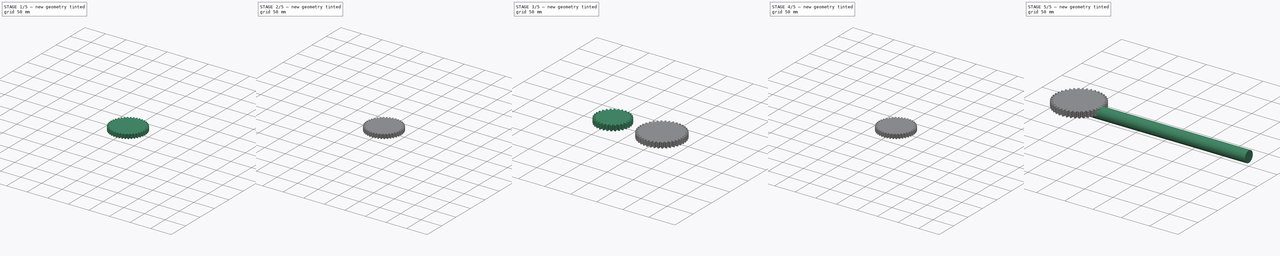
[diagram: build sequence overview — one tinted view per stage of 5, left to right]
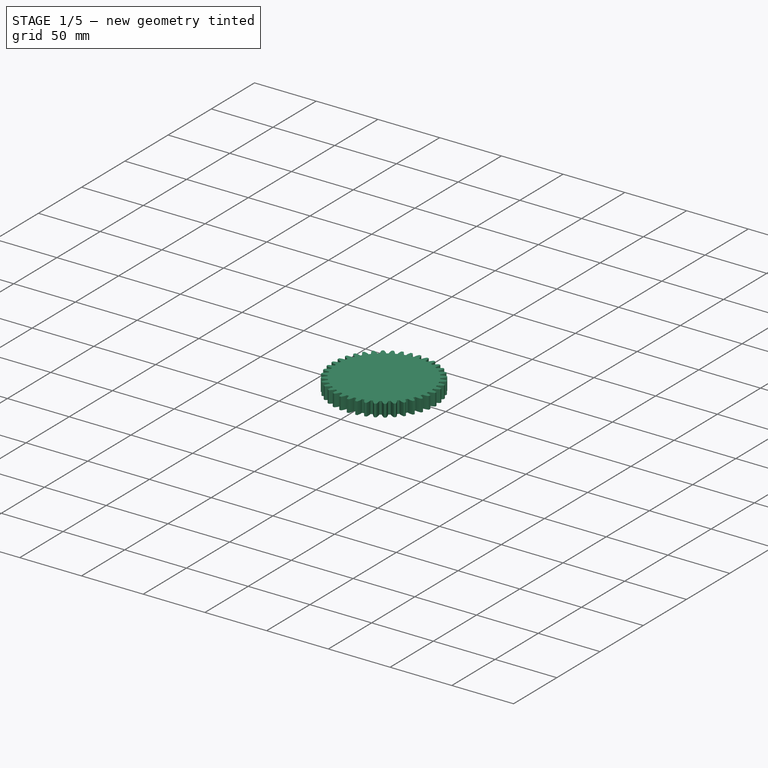
[diagram: stage 1 of 5 — iso view after this stage's code; geometry added in this stage tinted green]
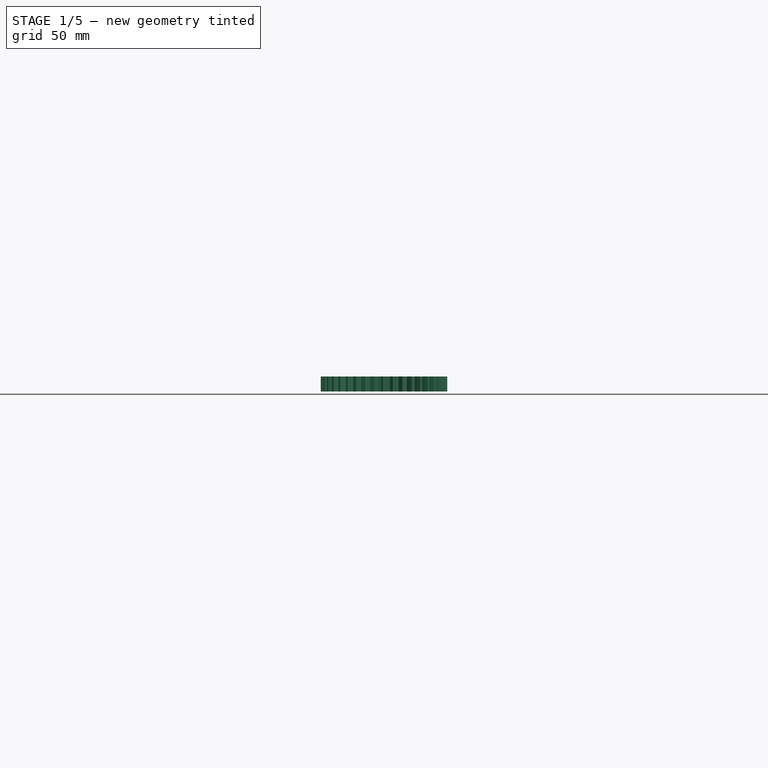
[diagram: stage 1 of 5 — front view after this stage's code; geometry added in this stage tinted green]
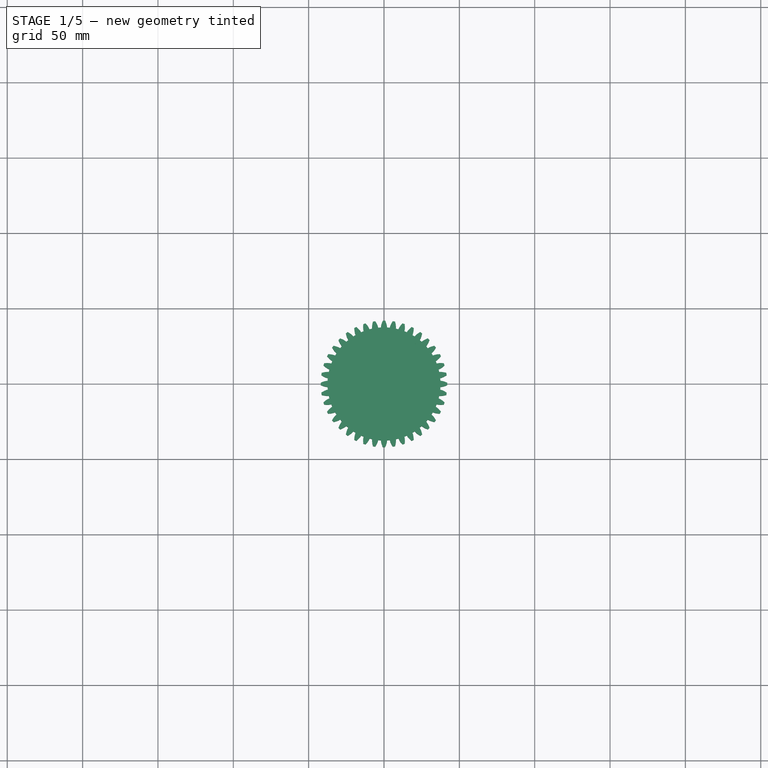
[diagram: stage 1 of 5 — top view after this stage's code; geometry added in this stage tinted green]
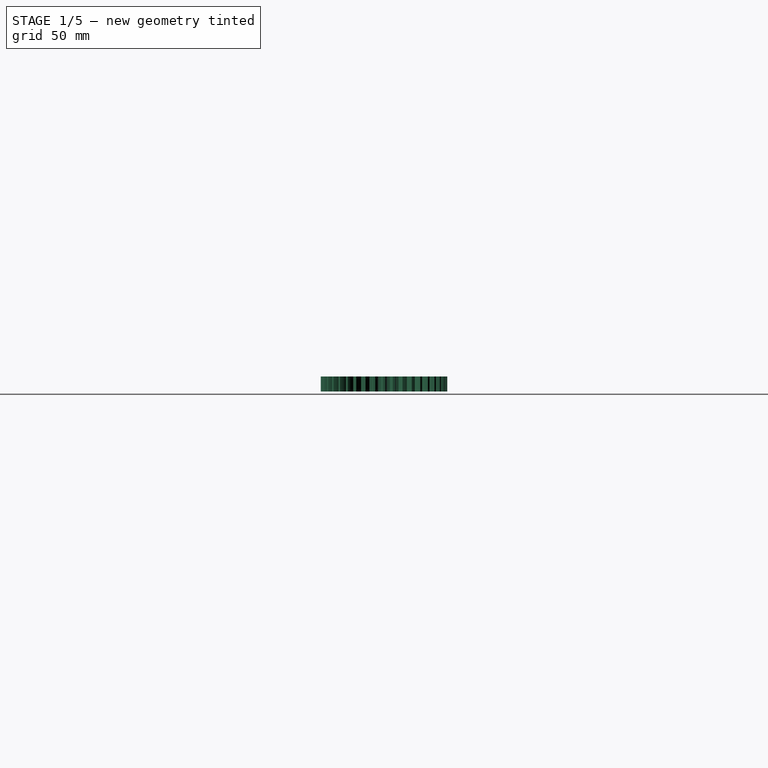
[diagram: stage 1 of 5 — right view after this stage's code; geometry added in this stage tinted green]
FCSTD DOCUMENT  (FreeCAD 0.21R33668 +26 (Git))
Label: Feed Gear Design
License: All rights reserved
LicenseURL: https://en.wikipedia.org/wiki/All_rights_reserved
objects: Sketcher::SketchObject×15, PartDesign::Body×15, PartDesign::Pocket×13, Part::FeaturePython×12, PartDesign::FeatureBase×12, PartDesign::FeaturePython×3, PartDesign::Pad×2, App::DocumentObjectGroup×2
note: 87 computed .brp shape members not serialized (recipe doc carries the construction recipe); baked Part::Feature solids carry a one-line shape summary decoded from their .brp

FEATURE [PartDesign::Body] Body013
  BaseFeature = -> InvoluteGear013
  Group = -> [BaseFeature009,Sketch013,Pocket011]
  Origin = -> Origin013
  Placement = pos=(118,92,2.01e-14) rot=(0,1,0;1.5708rad)
  Tip = -> Pocket011
FEATURE [Part::FeaturePython] InvoluteGear014  # WARN: FeaturePython — macro-defined, semantics opaque (R4)
  AttacherType = Attacher::AttachEngine3D
  angular_backlash = 0
  backlash = 0
  beta = 0
  clearance = 0.25
  da = 70
  df = 61
  double_helix = false
  dw = 66
  head = 0
  head_fillet = 0
  height = 10
  module = 2
  numpoints = 20
  pressure_angle = 20
  properties_from_tool = false
  reversed_backlash = false
  root_fillet = 0
  shift = 0
  simple = false
  teeth = 33
  transverse_pitch = 6.28319
  traverse_module = 2
  undercut = false
  version = 1.2.0
  expr: angular_backlash = backlash / dw * 360 ° / pi
FEATURE [PartDesign::FeatureBase] BaseFeature010
  BaseFeature = -> InvoluteGear014
FEATURE [Sketcher::SketchObject] Sketch014
  FullyConstrained = true
  MapMode = 5
  sketch-geometry (1):
    g0: Circle CenterX=0 CenterY=0 CenterZ=0 NormalX=0 NormalY=0 NormalZ=1 AngleXU=0 Radius=10
  constraints (2):
    c: Coincident(g0,g-1)
    c: Radius(g0) = 10
FEATURE [PartDesign::Pocket] Pocket012
  BaseFeature = -> BaseFeature010
  Direction = (0,0,-1)
  Length = 10
  Length2 = 5
  Profile = -> Sketch014
  ReferenceAxis = -> Sketch014 [N_Axis]
  Type = 0
FEATURE [PartDesign::Body] Body014
  BaseFeature = -> InvoluteGear014
  Group = -> [BaseFeature010,Sketch014,Pocket012]
  Origin = -> Origin014
  Placement = pos=(98,22,1.6e-14) rot=(0,1,0;1.5708rad)
  Tip = -> Pocket012
FEATURE [Part::FeaturePython] InvoluteGear015  # WARN: FeaturePython — macro-defined, semantics opaque (R4)
  AttacherType = Attacher::AttachEngine3D
  angular_backlash = 0
  backlash = 0
  beta = 0
  clearance = 0.25
  da = 70
  df = 61
  double_helix = false
  dw = 66
  head = 0
  head_fillet = 0
  height = 10
  module = 2
  numpoints = 20
  pressure_angle = 20
  properties_from_tool = false
  reversed_backlash = false
  root_fillet = 0
  shift = 0
  simple = false
  teeth = 33
  transverse_pitch = 6.28319
  traverse_module = 2
  undercut = false
  version = 1.2.0
  expr: angular_backlash = backlash / dw * 360 ° / pi
FEATURE [PartDesign::FeatureBase] BaseFeature011
  BaseFeature = -> InvoluteGear015
FEATURE [Sketcher::SketchObject] Sketch015
  FullyConstrained = true
  MapMode = 5
  sketch-geometry (1):
    g0: Circle CenterX=0 CenterY=0 CenterZ=0 NormalX=0 NormalY=0 NormalZ=1 AngleXU=0 Radius=10
  constraints (2):
    c: Coincident(g0,g-1)
    c: Radius(g0) = 10
FEATURE [PartDesign::Pocket] Pocket013
  BaseFeature = -> BaseFeature011
  Direction = (0,0,-1)
  Length = 10
  Length2 = 5
  Profile = -> Sketch015
  ReferenceAxis = -> Sketch015 [N_Axis]
  Type = 0
FEATURE [PartDesign::Body] Body015
  BaseFeature = -> InvoluteGear015
  Group = -> [BaseFeature011,Sketch015,Pocket013]
  Origin = -> Origin015
  Placement = pos=(271,22,5.44e-14) rot=(0,1,0;1.5708rad)
  Tip = -> Pocket013
FEATURE [Part::FeaturePython] InvoluteGear016  # WARN: FeaturePython — macro-defined, semantics opaque (R4)
  AttacherType = Attacher::AttachEngine3D
  angular_backlash = 0
  backlash = 0
  beta = 0
  clearance = 0.25
  da = 84
  df = 75
  double_helix = false
  dw = 80
  head = 0
  head_fillet = 0
  height = 10
  module = 2
  numpoints = 20
  pressure_angle = 20
  properties_from_tool = false
  reversed_backlash = false
  root_fillet = 0
  shift = 0
  simple = false
  teeth = 40
  transverse_pitch = 6.28319
  traverse_module = 2
  undercut = false
  version = 1.2.0
  expr: angular_backlash = backlash / dw * 360 ° / pi
FEATURE [PartDesign::FeatureBase] BaseFeature012
  BaseFeature = -> InvoluteGear016
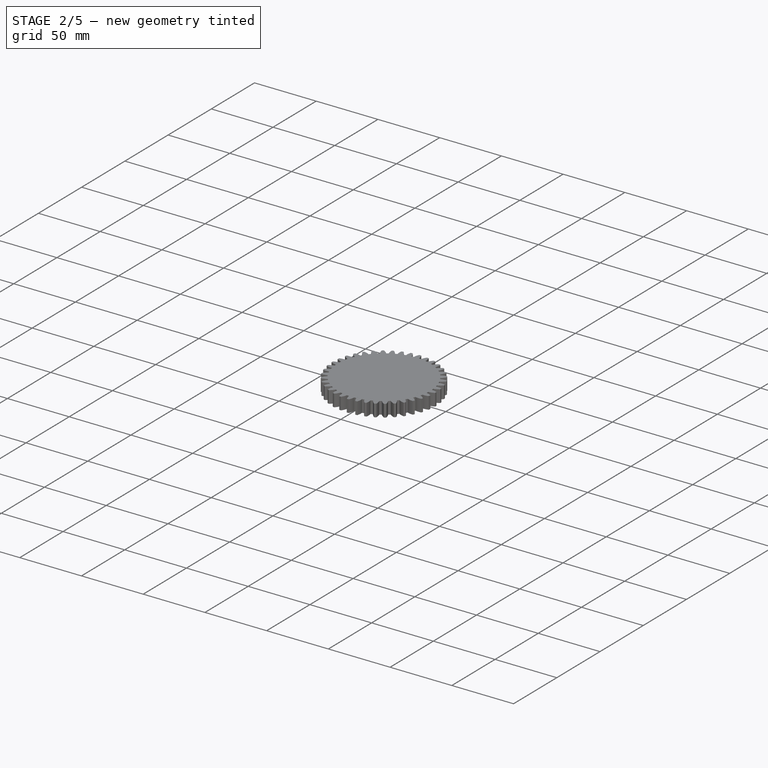
[diagram: stage 2 of 5 — iso view after this stage's code; geometry added in this stage tinted green]
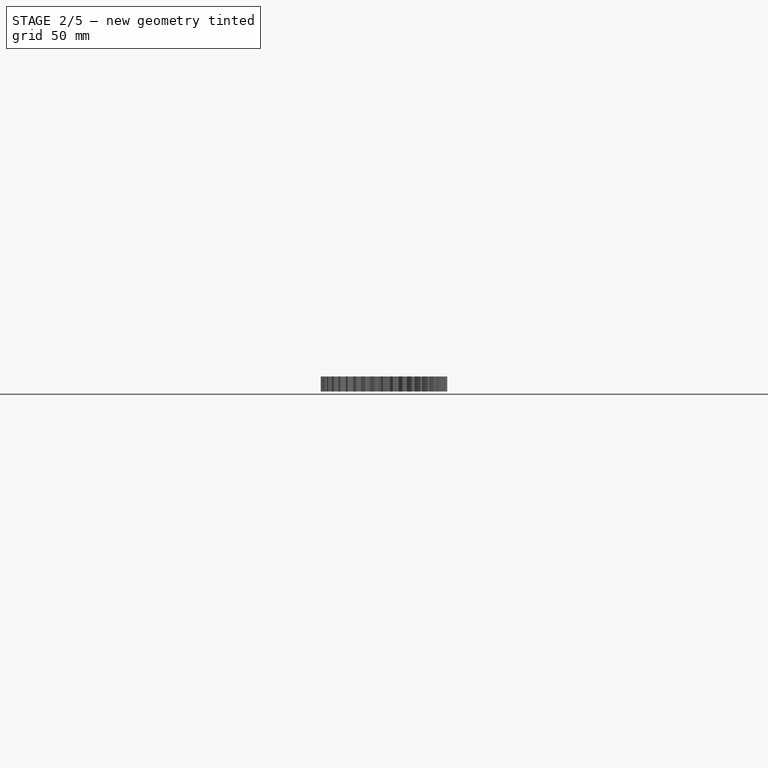
[diagram: stage 2 of 5 — front view after this stage's code; geometry added in this stage tinted green]
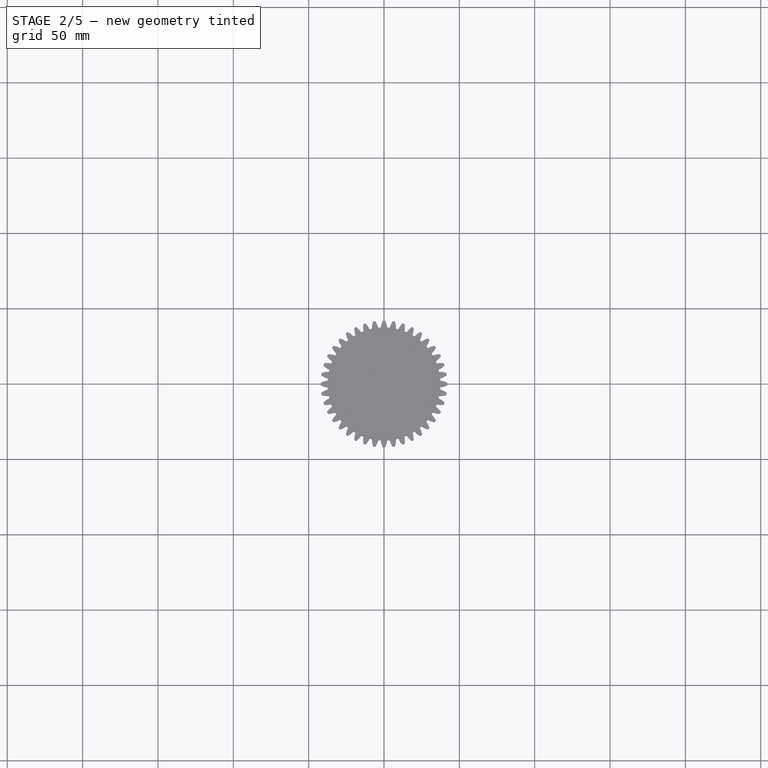
[diagram: stage 2 of 5 — top view after this stage's code; geometry added in this stage tinted green]
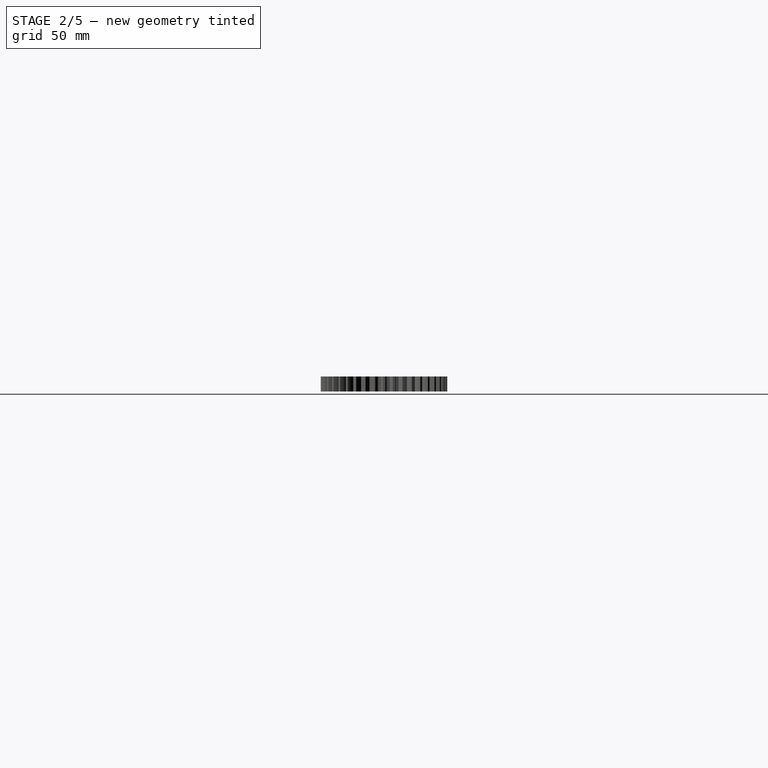
[diagram: stage 2 of 5 — right view after this stage's code; geometry added in this stage tinted green]
FEATURE [Part::FeaturePython] InvoluteGear011  # WARN: FeaturePython — macro-defined, semantics opaque (R4)
  AttacherType = Attacher::AttachEngine3D
  angular_backlash = 0
  backlash = 0
  beta = 0
  clearance = 0.25
  da = 70
  df = 61
  double_helix = false
  dw = 66
  head = 0
  head_fillet = 0
  height = 10
  module = 2
  numpoints = 20
  pressure_angle = 20
  properties_from_tool = false
  reversed_backlash = false
  root_fillet = 0
  shift = 0
  simple = false
  teeth = 33
  transverse_pitch = 6.28319
  traverse_module = 2
  undercut = false
  version = 1.2.0
  expr: angular_backlash = backlash / dw * 360 ° / pi
FEATURE [Part::FeaturePython] InvoluteGear012  # WARN: FeaturePython — macro-defined, semantics opaque (R4)
  AttacherType = Attacher::AttachEngine3D
  angular_backlash = 0
  backlash = 0
  beta = 0
  clearance = 0.25
  da = 72
  df = 63
  double_helix = false
  dw = 68
  head = 0
  head_fillet = 0
  height = 10
  module = 2
  numpoints = 20
  pressure_angle = 20
  properties_from_tool = false
  reversed_backlash = false
  root_fillet = 0
  shift = 0
  simple = false
  teeth = 34
  transverse_pitch = 6.28319
  traverse_module = 2
  undercut = false
  version = 1.2.0
  expr: angular_backlash = backlash / dw * 360 ° / pi
FEATURE [Part::FeaturePython] InvoluteGear013  # WARN: FeaturePython — macro-defined, semantics opaque (R4)
  AttacherType = Attacher::AttachEngine3D
  angular_backlash = 0
  backlash = 0
  beta = 0
  clearance = 0.25
  da = 74
  df = 65
  double_helix = false
  dw = 70
  head = 0
  head_fillet = 0
  height = 10
  module = 2
  numpoints = 20
  pressure_angle = 20
  properties_from_tool = false
  reversed_backlash = false
  root_fillet = 0
  shift = 0
  simple = false
  teeth = 35
  transverse_pitch = 6.28319
  traverse_module = 2
  undercut = false
  version = 1.2.0
  expr: angular_backlash = backlash / dw * 360 ° / pi
FEATURE [PartDesign::Body] Body009
  BaseFeature = -> InvoluteGear010
  Group = -> [BaseFeature005,Sketch009,Pocket007]
  Origin = -> Origin009
  Placement = pos=(88,92,1.34e-14) rot=(0,1,0;1.5708rad)
  Tip = -> Pocket007
FEATURE [PartDesign::FeatureBase] BaseFeature006
  BaseFeature = -> InvoluteGear011
FEATURE [PartDesign::Body] Body010
  BaseFeature = -> InvoluteGear011
  Group = -> [BaseFeature006,Sketch010,Pocket008]
  Origin = -> Origin010
  Placement = pos=(98,92,1.57e-14) rot=(0,1,0;1.5708rad)
  Tip = -> Pocket008
FEATURE [PartDesign::FeatureBase] BaseFeature008
  BaseFeature = -> InvoluteGear012
FEATURE [Sketcher::SketchObject] Sketch012
  FullyConstrained = true
  MapMode = 5
  Placement = pos=(0,0,10) rot=(0,0,1;0rad)
  sketch-geometry (1):
    g0: Circle CenterX=0 CenterY=0 CenterZ=0 NormalX=0 NormalY=0 NormalZ=1 AngleXU=0 Radius=10
  constraints (2):
    c: Coincident(g0,g-1)
    c: Radius(g0) = 10
FEATURE [PartDesign::Pocket] Pocket010
  BaseFeature = -> BaseFeature008
  Direction = (0,0,-1)
  Length = 10
  Length2 = 5
  Profile = -> Sketch012
  ReferenceAxis = -> Sketch012 [N_Axis]
  Type = 0
FEATURE [PartDesign::Body] Body012
  BaseFeature = -> InvoluteGear012
  Group = -> [BaseFeature008,Sketch012,Pocket010]
  Origin = -> Origin012
  Placement = pos=(108,92,1.79e-14) rot=(0,1,0;1.5708rad)
  Tip = -> Pocket010
FEATURE [PartDesign::FeatureBase] BaseFeature009
  BaseFeature = -> InvoluteGear013
FEATURE [Sketcher::SketchObject] Sketch013
  FullyConstrained = true
  MapMode = 5
  Placement = pos=(0,0,10) rot=(0,0,1;0rad)
  sketch-geometry (1):
    g0: Circle CenterX=0 CenterY=0 CenterZ=0 NormalX=0 NormalY=0 NormalZ=1 AngleXU=0 Radius=10
  constraints (2):
    c: Coincident(g0,g-1)
    c: Radius(g0) = 10
FEATURE [PartDesign::Pocket] Pocket011
  BaseFeature = -> BaseFeature009
  Direction = (0,0,-1)
  Length = 10
  Length2 = 5
  Profile = -> Sketch013
  ReferenceAxis = -> Sketch013 [N_Axis]
  Type = 0
FEATURE [Sketcher::SketchObject] Sketch016
  FullyConstrained = true
  MapMode = 5
  sketch-geometry (1):
    g0: Circle CenterX=0 CenterY=0 CenterZ=0 NormalX=0 NormalY=0 NormalZ=1 AngleXU=0 Radius=10
  constraints (2):
    c: Coincident(g0,g-1)
    c: Radius(g0) = 10
FEATURE [PartDesign::Pocket] Pocket014
  BaseFeature = -> BaseFeature012
  Direction = (0,0,-1)
  Length = 10
  Length2 = 5
  Profile = -> Sketch016
  ReferenceAxis = -> Sketch016 [N_Axis]
  Type = 0
FEATURE [PartDesign::Body] Body016
  BaseFeature = -> InvoluteGear016
  Group = -> [BaseFeature012,Sketch016,Pocket014]
  Origin = -> Origin016
  Placement = pos=(271,93,5.44e-14) rot=(0,1,0;1.5708rad)
  Tip = -> Pocket014
FEATURE [App::DocumentObjectGroup] Group  label="Feed1"
  Group = -> [Body,Body004,InvoluteGear003,InvoluteGear004,Body005,InvoluteGear005,Body006,InvoluteGear008,Body007,InvoluteGear009,InvoluteGear010,InvoluteGear011,InvoluteGear012,InvoluteGear013,Body008,Body009,Body010,Body012,Body013,Body016,InvoluteGear016]
FEATURE [App::DocumentObjectGroup] Group001  label="Feed2"
  Group = -> [Body014,InvoluteGear014,Body015,InvoluteGear015]
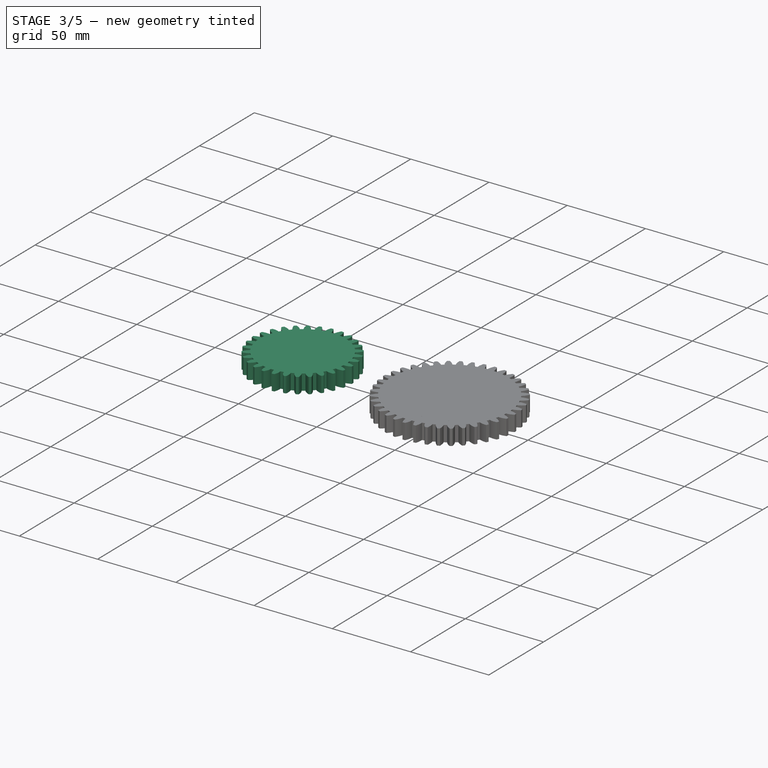
[diagram: stage 3 of 5 — iso view after this stage's code; geometry added in this stage tinted green]
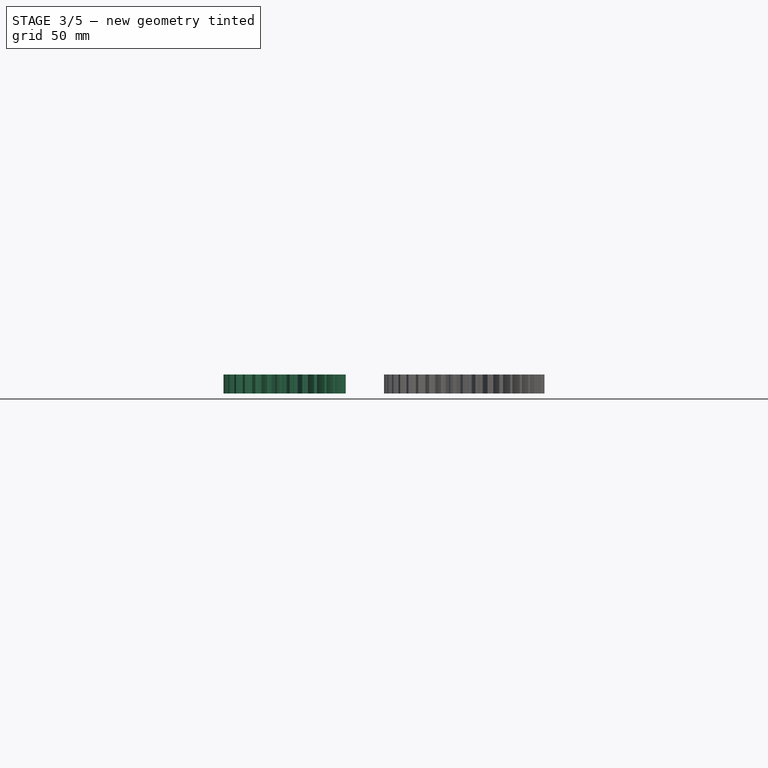
[diagram: stage 3 of 5 — front view after this stage's code; geometry added in this stage tinted green]
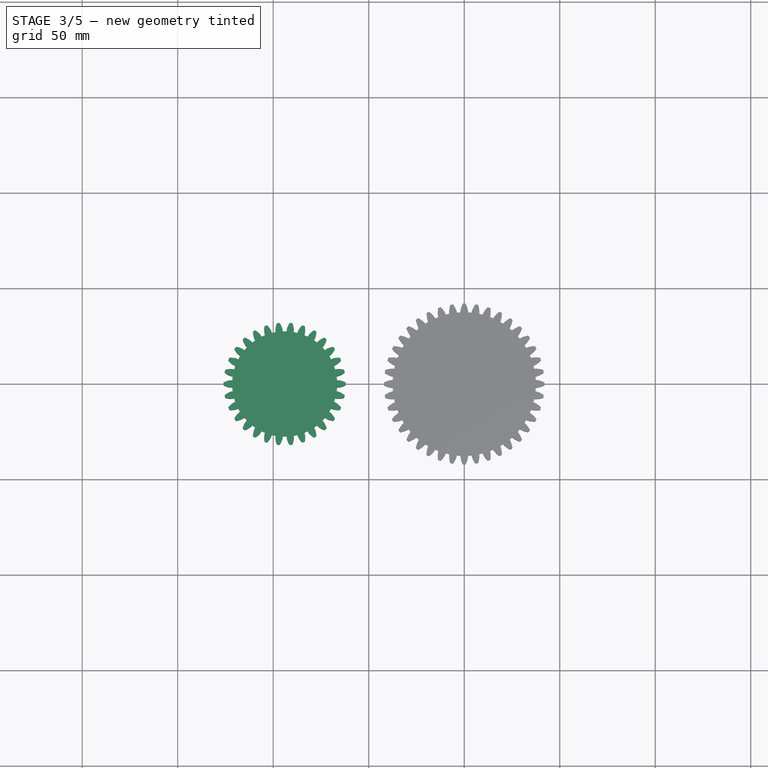
[diagram: stage 3 of 5 — top view after this stage's code; geometry added in this stage tinted green]
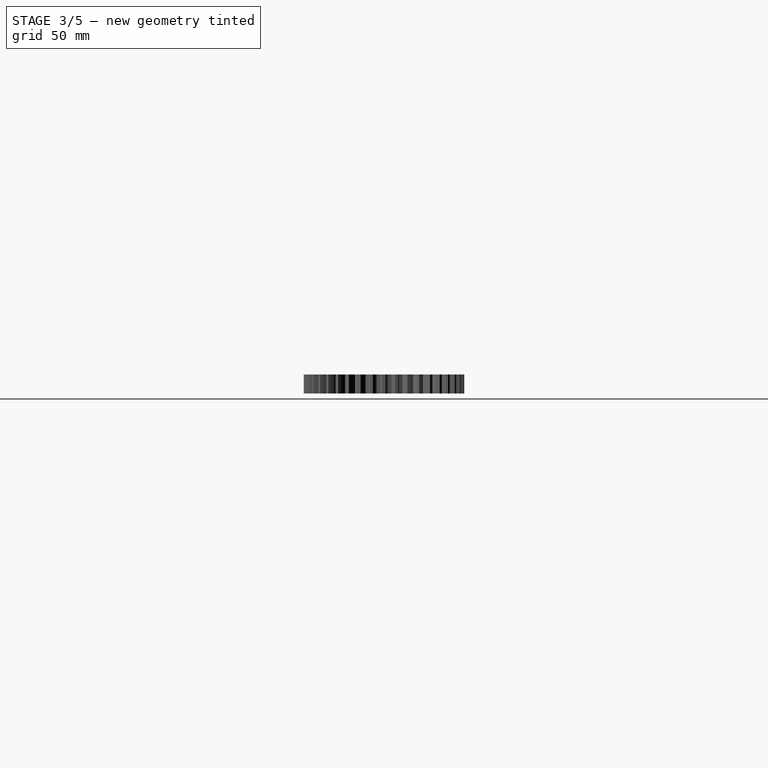
[diagram: stage 3 of 5 — right view after this stage's code; geometry added in this stage tinted green]
FEATURE [PartDesign::Body] Body004
  BaseFeature = -> InvoluteGear003
  Group = -> [BaseFeature,Sketch004,Pocket002,InvoluteGear006,InvoluteGear007]
  Origin = -> Origin004
  Placement = pos=(48,92,4.6e-15) rot=(0,1,0;1.5708rad)
  Tip = -> InvoluteGear007
FEATURE [Part::FeaturePython] InvoluteGear008  # WARN: FeaturePython — macro-defined, semantics opaque (R4)
  AttacherType = Attacher::AttachEngine3D
  Placement = pos=(-94,0,0) rot=(0,0,1;0rad)
  angular_backlash = 0
  backlash = 0
  beta = 0
  clearance = 0.25
  da = 64
  df = 55
  double_helix = false
  dw = 60
  head = 0
  head_fillet = 0
  height = 10
  module = 2
  numpoints = 20
  pressure_angle = 20
  properties_from_tool = false
  reversed_backlash = false
  root_fillet = 0
  shift = 0
  simple = false
  teeth = 30
  transverse_pitch = 6.28319
  traverse_module = 2
  undercut = false
  version = 1.2.0
  expr: angular_backlash = backlash / dw * 360 ° / pi
FEATURE [PartDesign::Body] Body007
  BaseFeature = -> InvoluteGear008
  Group = -> [BaseFeature003,Sketch007,Pocket005]
  Origin = -> Origin007
  Placement = pos=(68,92,9.2e-15) rot=(0,1,0;1.5708rad)
  Tip = -> Pocket005
FEATURE [Part::FeaturePython] InvoluteGear009  # WARN: FeaturePython — macro-defined, semantics opaque (R4)
  AttacherType = Attacher::AttachEngine3D
  angular_backlash = 0
  backlash = 0
  beta = 0
  clearance = 0.25
  da = 66
  df = 57
  double_helix = false
  dw = 62
  head = 0
  head_fillet = 0
  height = 10
  module = 2
  numpoints = 20
  pressure_angle = 20
  properties_from_tool = false
  reversed_backlash = false
  root_fillet = 0
  shift = 0
  simple = false
  teeth = 31
  transverse_pitch = 6.28319
  traverse_module = 2
  undercut = false
  version = 1.2.0
  expr: angular_backlash = backlash / dw * 360 ° / pi
FEATURE [Part::FeaturePython] InvoluteGear010  # WARN: FeaturePython — macro-defined, semantics opaque (R4)
  AttacherType = Attacher::AttachEngine3D
  angular_backlash = 0
  backlash = 0
  beta = 0
  clearance = 0.25
  da = 68
  df = 59
  double_helix = false
  dw = 64
  head = 0
  head_fillet = 0
  height = 10
  module = 2
  numpoints = 20
  pressure_angle = 20
  properties_from_tool = false
  reversed_backlash = false
  root_fillet = 0
  shift = 0
  simple = false
  teeth = 32
  transverse_pitch = 6.28319
  traverse_module = 2
  undercut = false
  version = 1.2.0
  expr: angular_backlash = backlash / dw * 360 ° / pi
FEATURE [PartDesign::FeatureBase] BaseFeature004
  BaseFeature = -> InvoluteGear009
FEATURE [Sketcher::SketchObject] Sketch008
  FullyConstrained = true
  MapMode = 5
  Placement = pos=(0,0,10) rot=(0,0,1;0rad)
  sketch-geometry (1):
    g0: Circle CenterX=0 CenterY=0 CenterZ=0 NormalX=0 NormalY=0 NormalZ=1 AngleXU=0 Radius=10
  constraints (2):
    c: Coincident(g0,g-1)
    c: Radius(g0) = 10
FEATURE [PartDesign::Pocket] Pocket006
  BaseFeature = -> BaseFeature004
  Direction = (0,0,-1)
  Length = 10
  Length2 = 5
  Profile = -> Sketch008
  ReferenceAxis = -> Sketch008 [N_Axis]
  Type = 0
FEATURE [PartDesign::Body] Body008
  BaseFeature = -> InvoluteGear009
  Group = -> [BaseFeature004,Sketch008,Pocket006]
  Origin = -> Origin008
  Placement = pos=(78,92,1.12e-14) rot=(0,1,0;1.5708rad)
  Tip = -> Pocket006
FEATURE [PartDesign::FeatureBase] BaseFeature005
  BaseFeature = -> InvoluteGear010
FEATURE [Sketcher::SketchObject] Sketch009
  FullyConstrained = true
  MapMode = 5
  Placement = pos=(0,0,10) rot=(0,0,1;0rad)
  sketch-geometry (1):
    g0: Circle CenterX=0 CenterY=0 CenterZ=0 NormalX=0 NormalY=0 NormalZ=1 AngleXU=0 Radius=10
  constraints (2):
    c: Coincident(g0,g-1)
    c: Radius(g0) = 10
FEATURE [PartDesign::Pocket] Pocket007
  BaseFeature = -> BaseFeature005
  Direction = (0,0,-1)
  Length = 10
  Length2 = 5
  Profile = -> Sketch009
  ReferenceAxis = -> Sketch009 [N_Axis]
  Type = 0
FEATURE [Sketcher::SketchObject] Sketch010
  FullyConstrained = true
  MapMode = 5
  sketch-geometry (1):
    g0: Circle CenterX=0 CenterY=0 CenterZ=0 NormalX=0 NormalY=0 NormalZ=1 AngleXU=0 Radius=10
  constraints (2):
    c: Coincident(g0,g-1)
    c: Radius(g0) = 10
FEATURE [PartDesign::Pocket] Pocket008
  BaseFeature = -> BaseFeature006
  Direction = (0,0,-1)
  Length = 10
  Length2 = 5
  Profile = -> Sketch010
  ReferenceAxis = -> Sketch010 [N_Axis]
  Type = 0
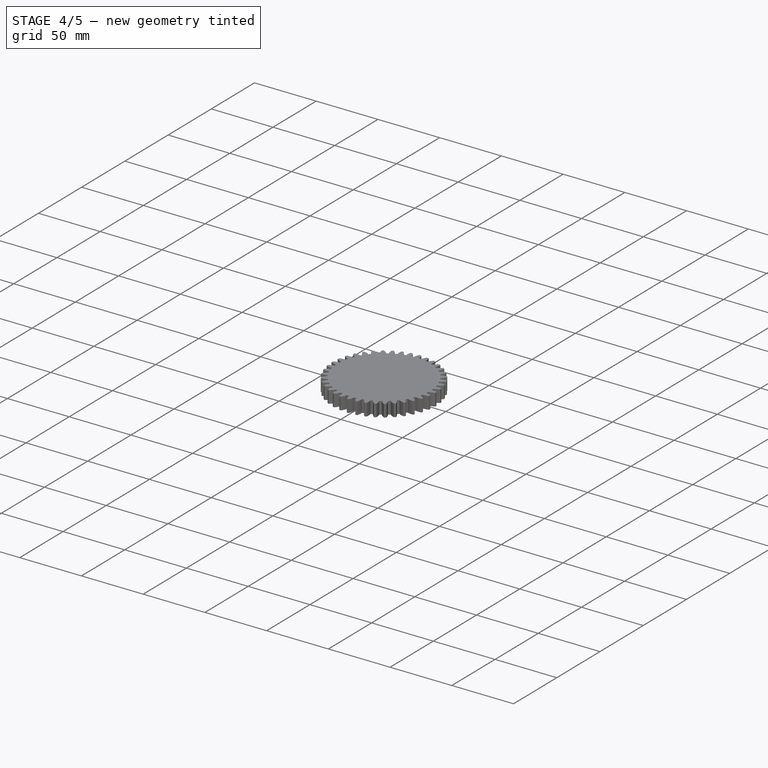
[diagram: stage 4 of 5 — iso view after this stage's code; geometry added in this stage tinted green]
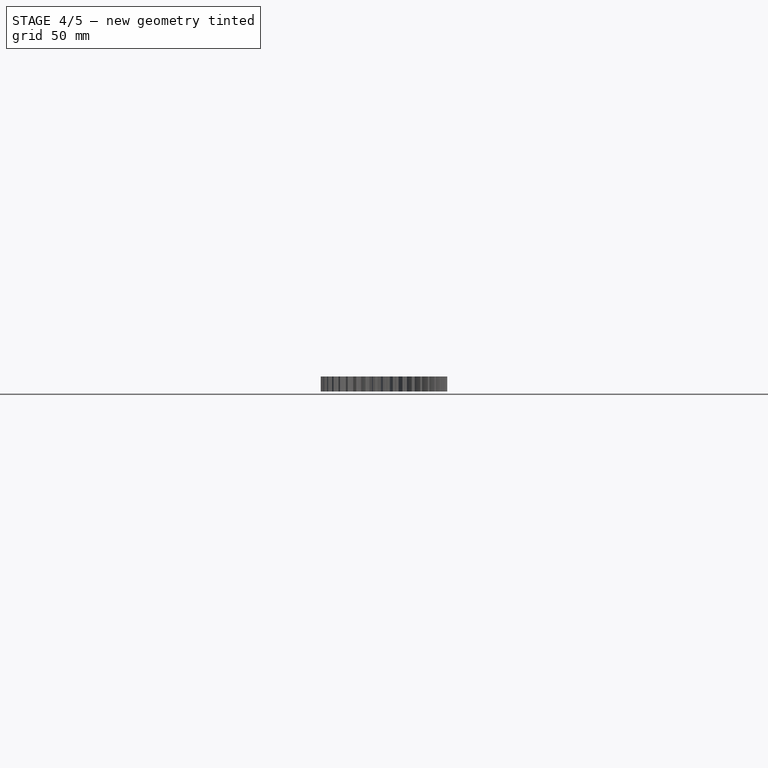
[diagram: stage 4 of 5 — front view after this stage's code; geometry added in this stage tinted green]
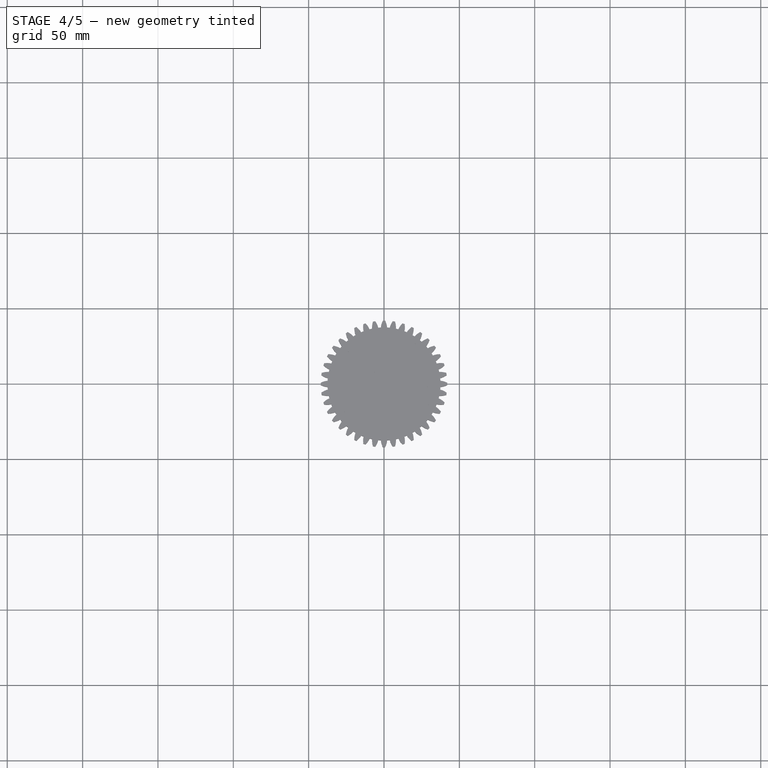
[diagram: stage 4 of 5 — top view after this stage's code; geometry added in this stage tinted green]
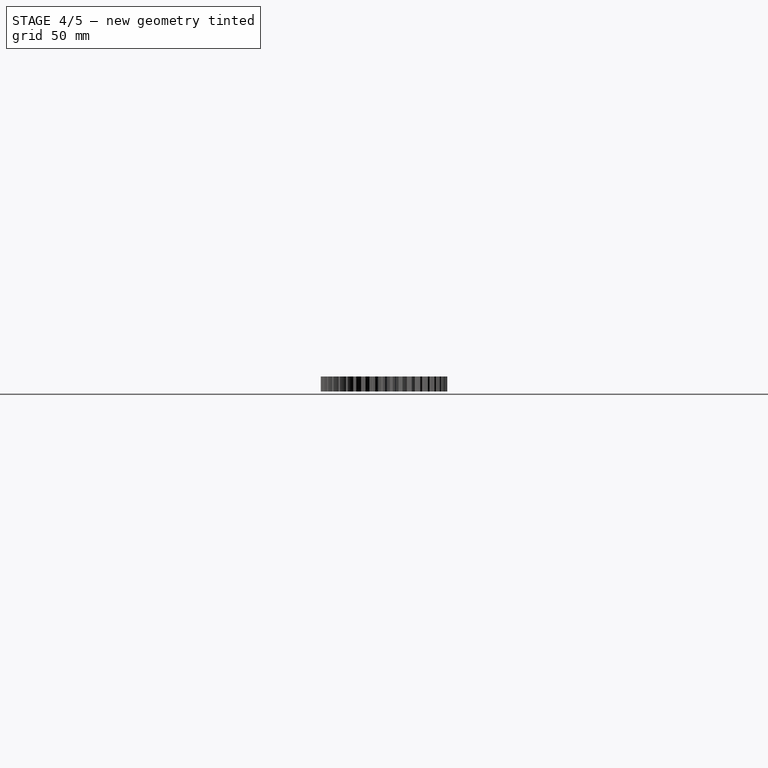
[diagram: stage 4 of 5 — right view after this stage's code; geometry added in this stage tinted green]
FEATURE [PartDesign::Body] Body
  Group = -> [InvoluteGear,Sketch,Pocket]
  Origin = -> Origin
  Placement = pos=(28,92,0) rot=(0,1,0;1.5708rad)
  Tip = -> Pocket
FEATURE [Sketcher::SketchObject] Sketch004
  FullyConstrained = true
  MapMode = 5
  Placement = pos=(0,0,10) rot=(0,0,1;0rad)
  sketch-geometry (1):
    g0: Circle CenterX=0 CenterY=0 CenterZ=0 NormalX=0 NormalY=0 NormalZ=1 AngleXU=0 Radius=10
  constraints (2):
    c: Coincident(g0,g-1)
    c: Radius(g0) = 10
FEATURE [Part::FeaturePython] InvoluteGear003  # WARN: FeaturePython — macro-defined, semantics opaque (R4)
  AttacherType = Attacher::AttachEngine3D
  angular_backlash = 0
  backlash = 0
  beta = 0
  clearance = 0.25
  da = 60
  df = 51
  double_helix = false
  dw = 56
  head = 0
  head_fillet = 0
  height = 10
  module = 2
  numpoints = 20
  pressure_angle = 20
  properties_from_tool = false
  reversed_backlash = false
  root_fillet = 0
  shift = 0
  simple = false
  teeth = 28
  transverse_pitch = 6.28319
  traverse_module = 2
  undercut = false
  version = 1.2.0
  expr: angular_backlash = backlash / dw * 360 ° / pi
FEATURE [PartDesign::FeatureBase] BaseFeature
  BaseFeature = -> InvoluteGear003
FEATURE [PartDesign::Pocket] Pocket002
  BaseFeature = -> BaseFeature
  Direction = (0,0,-1)
  Length = 10
  Length2 = 5
  Profile = -> Sketch004
  ReferenceAxis = -> Sketch004 [N_Axis]
  Type = 0
FEATURE [PartDesign::Body] Body005
  BaseFeature = -> InvoluteGear004
  Group = -> [BaseFeature001,Sketch005,Pocket003]
  Origin = -> Origin005
  Placement = pos=(38,92,2.3e-15) rot=(0,1,0;1.5708rad)
  Tip = -> Pocket003
FEATURE [Part::FeaturePython] InvoluteGear005  # WARN: FeaturePython — macro-defined, semantics opaque (R4)
  AttacherType = Attacher::AttachEngine3D
  angular_backlash = 0
  backlash = 0
  beta = 0
  clearance = 0.25
  da = 62
  df = 53
  double_helix = false
  dw = 58
  head = 0
  head_fillet = 0
  height = 10
  module = 2
  numpoints = 20
  pressure_angle = 20
  properties_from_tool = false
  reversed_backlash = false
  root_fillet = 0
  shift = 0
  simple = false
  teeth = 29
  transverse_pitch = 6.28319
  traverse_module = 2
  undercut = false
  version = 1.2.0
  expr: angular_backlash = backlash / dw * 360 ° / pi
FEATURE [PartDesign::FeatureBase] BaseFeature002
  BaseFeature = -> InvoluteGear005
FEATURE [PartDesign::Body] Body006
  BaseFeature = -> InvoluteGear005
  Group = -> [BaseFeature002,Sketch006,Pocket004]
  Origin = -> Origin006
  Placement = pos=(58,92,7.2e-15) rot=(0,1,0;1.5708rad)
  Tip = -> Pocket004
FEATURE [PartDesign::FeaturePython] InvoluteGear006  # WARN: FeaturePython — macro-defined, semantics opaque (R4)
  AttacherType = Attacher::AttachEngine3D
  BaseFeature = -> Pocket002
  angular_backlash = 0
  backlash = 0
  beta = 0
  clearance = 0.25
  da = 17
  df = 12.5
  double_helix = false
  dw = 15
  head = 0
  head_fillet = 0
  height = 5
  module = 1
  numpoints = 20
  pressure_angle = 20
  properties_from_tool = false
  reversed_backlash = false
  root_fillet = 0
  shift = 0
  simple = false
  teeth = 15
  transverse_pitch = 3.14159
  traverse_module = 1
  undercut = false
  version = 1.2.0
  expr: angular_backlash = backlash / dw * 360 ° / pi
FEATURE [PartDesign::FeaturePython] InvoluteGear007  # WARN: FeaturePython — macro-defined, semantics opaque (R4)
  AttacherType = Attacher::AttachEngine3D
  BaseFeature = -> InvoluteGear006
  angular_backlash = 0
  backlash = 0
  beta = 0
  clearance = 0.25
  da = 17
  df = 12.5
  double_helix = false
  dw = 15
  head = 0
  head_fillet = 0
  height = 5
  module = 1
  numpoints = 20
  pressure_angle = 20
  properties_from_tool = false
  reversed_backlash = false
  root_fillet = 0
  shift = 0
  simple = false
  teeth = 15
  transverse_pitch = 3.14159
  traverse_module = 1
  undercut = false
  version = 1.2.0
  expr: angular_backlash = backlash / dw * 360 ° / pi
FEATURE [PartDesign::FeatureBase] BaseFeature003
  BaseFeature = -> InvoluteGear008
FEATURE [Sketcher::SketchObject] Sketch007
  FullyConstrained = true
  MapMode = 5
  Placement = pos=(0,0,10) rot=(0,0,1;0rad)
  sketch-geometry (1):
    g0: Circle CenterX=0 CenterY=0 CenterZ=0 NormalX=0 NormalY=0 NormalZ=1 AngleXU=0 Radius=10
  constraints (2):
    c: Coincident(g0,g-1)
    c: Radius(g0) = 10
FEATURE [PartDesign::Pocket] Pocket005
  BaseFeature = -> BaseFeature003
  Direction = (0,0,-1)
  Length = 10
  Length2 = 5
  Profile = -> Sketch007
  ReferenceAxis = -> Sketch007 [N_Axis]
  Type = 0
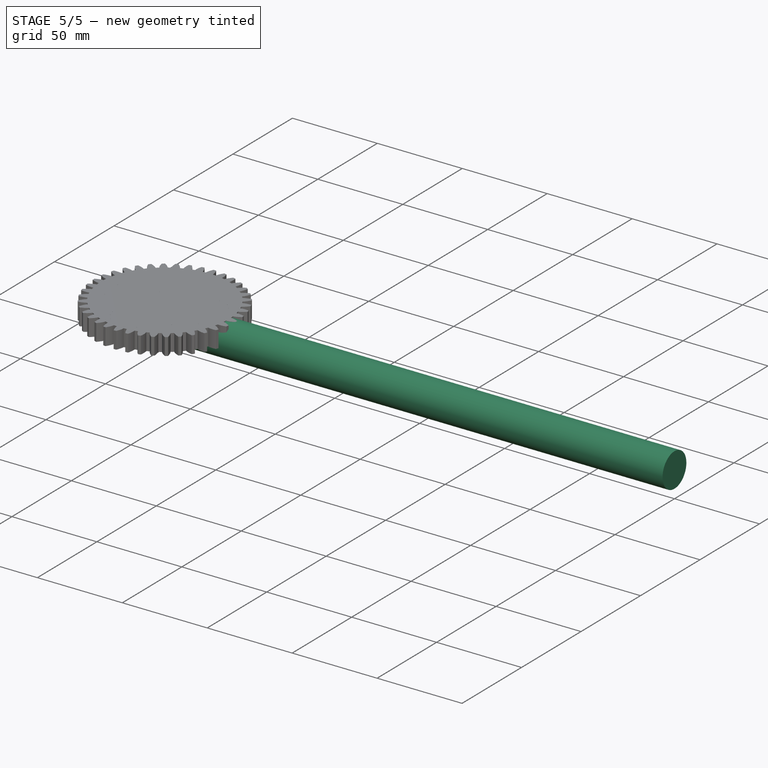
[diagram: stage 5 of 5 — iso view after this stage's code; geometry added in this stage tinted green]
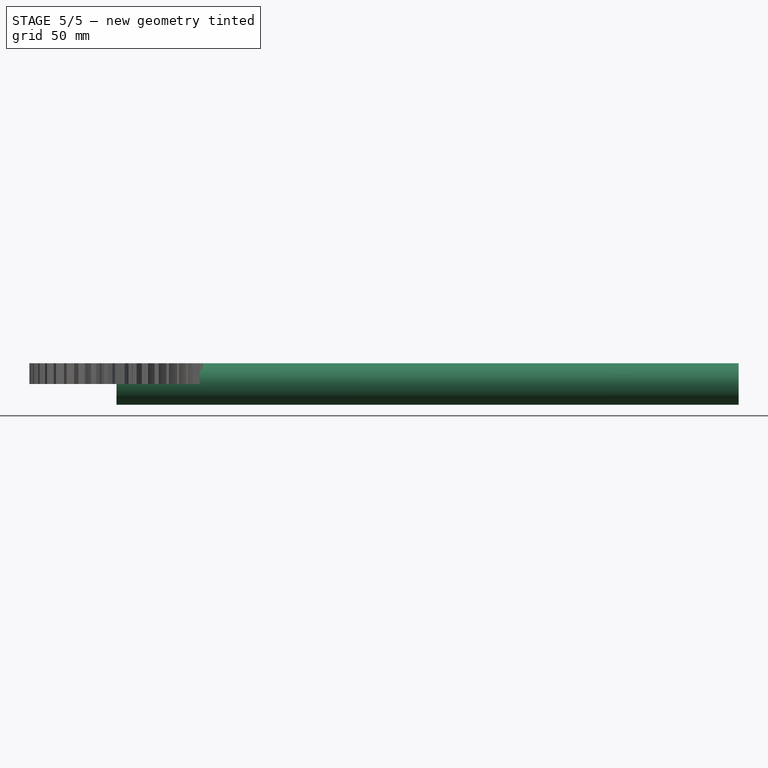
[diagram: stage 5 of 5 — front view after this stage's code; geometry added in this stage tinted green]
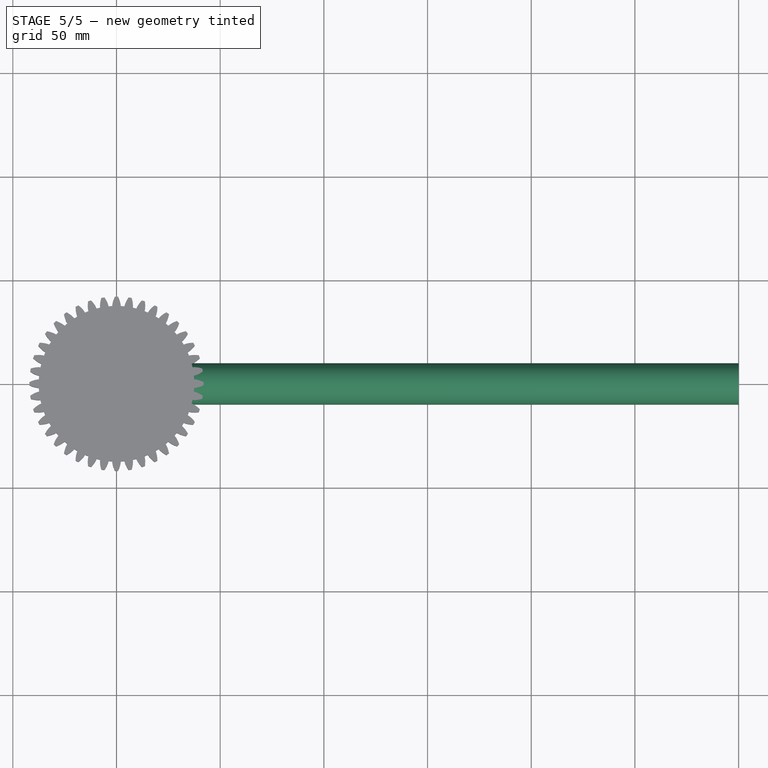
[diagram: stage 5 of 5 — top view after this stage's code; geometry added in this stage tinted green]
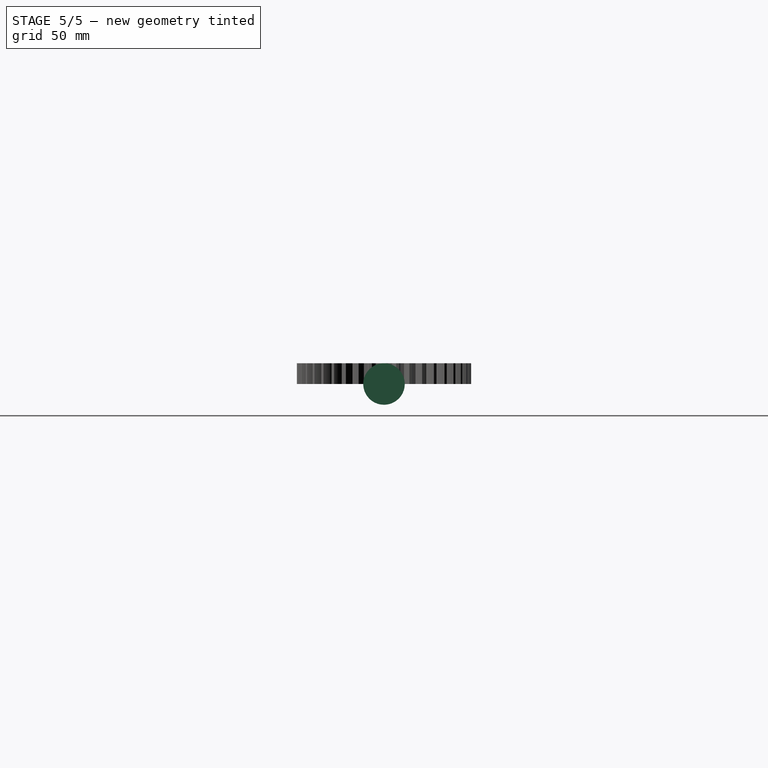
[diagram: stage 5 of 5 — right view after this stage's code; geometry added in this stage tinted green]
FEATURE [Sketcher::SketchObject] Sketch001
  FullyConstrained = true
  MapMode = 5
  Placement = pos=(0,0,0) rot=(0.57735,0.57735,0.57735;2.0944rad)
  Support = -> [YZ_Plane001]
  sketch-geometry (1):
    g0: Circle CenterX=0 CenterY=0 CenterZ=0 NormalX=0 NormalY=0 NormalZ=1 AngleXU=0 Radius=10
  constraints (2):
    c: Coincident(g0,g-1)
    c: Diameter(g0) = 20
FEATURE [PartDesign::Pad] Pad001
  Direction = (1,-2e-16,3e-16)
  Length = 300
  Length2 = 10
  Placement = pos=(0,0,0) rot=(0.57735,0.57735,0.57735;2.0944rad)
  Profile = -> Sketch001
  ReferenceAxis = -> Sketch001 [N_Axis]
  Type = 0
FEATURE [PartDesign::Body] Body001  label="Shaft1"
  Group = -> [Sketch001,Pad001]
  Origin = -> Origin001
  Placement = pos=(0,22,0) rot=(0,0,1;0rad)
  Tip = -> Pad001
FEATURE [Sketcher::SketchObject] Sketch002
  FullyConstrained = true
  MapMode = 5
  Placement = pos=(0,0,0) rot=(0.57735,0.57735,0.57735;2.0944rad)
  Support = -> [YZ_Plane002]
  sketch-geometry (1):
    g0: Circle CenterX=0 CenterY=0 CenterZ=0 NormalX=0 NormalY=0 NormalZ=1 AngleXU=0 Radius=10
  constraints (2):
    c: Coincident(g0,g-1)
    c: Diameter(g0) = 20
FEATURE [PartDesign::Pad] Pad002
  Direction = (1,-2e-16,3e-16)
  Length = 300
  Length2 = 10
  Placement = pos=(0,0,0) rot=(0.57735,0.57735,0.57735;2.0944rad)
  Profile = -> Sketch002
  ReferenceAxis = -> Sketch002 [N_Axis]
  Type = 0
FEATURE [PartDesign::Body] Body002  label="Shaft2"
  Group = -> [Sketch002,Pad002]
  Origin = -> Origin002
  Placement = pos=(0,92,0) rot=(0,0,1;0rad)
  Tip = -> Pad002
FEATURE [PartDesign::FeaturePython] InvoluteGear  # WARN: FeaturePython — macro-defined, semantics opaque (R4)
  AttacherType = Attacher::AttachEngine3D
  angular_backlash = 0
  backlash = 0
  beta = 0
  clearance = 0.25
  da = 56
  df = 47
  double_helix = false
  dw = 52
  head = 0
  head_fillet = 0
  height = 10
  module = 2
  numpoints = 20
  pressure_angle = 20
  properties_from_tool = false
  reversed_backlash = false
  root_fillet = 0
  shift = 0
  simple = false
  teeth = 26
  transverse_pitch = 6.28319
  traverse_module = 2
  undercut = false
  version = 1.2.0
  expr: angular_backlash = backlash / dw * 360 ° / pi
FEATURE [Sketcher::SketchObject] Sketch
  FullyConstrained = true
  MapMode = 5
  Placement = pos=(0,0,10) rot=(0,0,1;0rad)
  Support = -> [InvoluteGear]
  sketch-geometry (1):
    g0: Circle CenterX=0 CenterY=0 CenterZ=0 NormalX=0 NormalY=0 NormalZ=1 AngleXU=0 Radius=10
  constraints (2):
    c: Coincident(g0,g-1)
    c: Radius(g0) = 10
FEATURE [PartDesign::Pocket] Pocket
  BaseFeature = -> InvoluteGear
  Direction = (0,0,-1)
  Length = 10
  Length2 = 5
  Profile = -> Sketch
  ReferenceAxis = -> Sketch [N_Axis]
  Type = 0
FEATURE [Part::FeaturePython] InvoluteGear004  # WARN: FeaturePython — macro-defined, semantics opaque (R4)
  AttacherType = Attacher::AttachEngine3D
  angular_backlash = 0
  backlash = 0
  beta = 0
  clearance = 0.25
  da = 58
  df = 49
  double_helix = false
  dw = 54
  head = 0
  head_fillet = 0
  height = 10
  module = 2
  numpoints = 20
  pressure_angle = 20
  properties_from_tool = false
  reversed_backlash = false
  root_fillet = 0
  shift = 0
  simple = false
  teeth = 27
  transverse_pitch = 6.28319
  traverse_module = 2
  undercut = false
  version = 1.2.0
  expr: angular_backlash = backlash / dw * 360 ° / pi
FEATURE [PartDesign::FeatureBase] BaseFeature001
  BaseFeature = -> InvoluteGear004
FEATURE [Sketcher::SketchObject] Sketch005
  FullyConstrained = true
  MapMode = 5
  Placement = pos=(0,0,10) rot=(0,0,1;0rad)
  sketch-geometry (1):
    g0: Circle CenterX=0 CenterY=0 CenterZ=0 NormalX=0 NormalY=0 NormalZ=1 AngleXU=0 Radius=10
  constraints (2):
    c: Coincident(g0,g-1)
    c: Radius(g0) = 10
FEATURE [PartDesign::Pocket] Pocket003
  BaseFeature = -> BaseFeature001
  Direction = (0,0,-1)
  Length = 10
  Length2 = 5
  Profile = -> Sketch005
  ReferenceAxis = -> Sketch005 [N_Axis]
  Type = 0
FEATURE [Sketcher::SketchObject] Sketch006
  FullyConstrained = true
  MapMode = 5
  Placement = pos=(0,0,10) rot=(0,0,1;0rad)
  sketch-geometry (1):
    g0: Circle CenterX=0 CenterY=0 CenterZ=0 NormalX=0 NormalY=0 NormalZ=1 AngleXU=0 Radius=10
  constraints (2):
    c: Coincident(g0,g-1)
    c: Radius(g0) = 10
FEATURE [PartDesign::Pocket] Pocket004
  BaseFeature = -> BaseFeature002
  Direction = (0,0,-1)
  Length = 10
  Length2 = 5
  Profile = -> Sketch006
  ReferenceAxis = -> Sketch006 [N_Axis]
  Type = 0
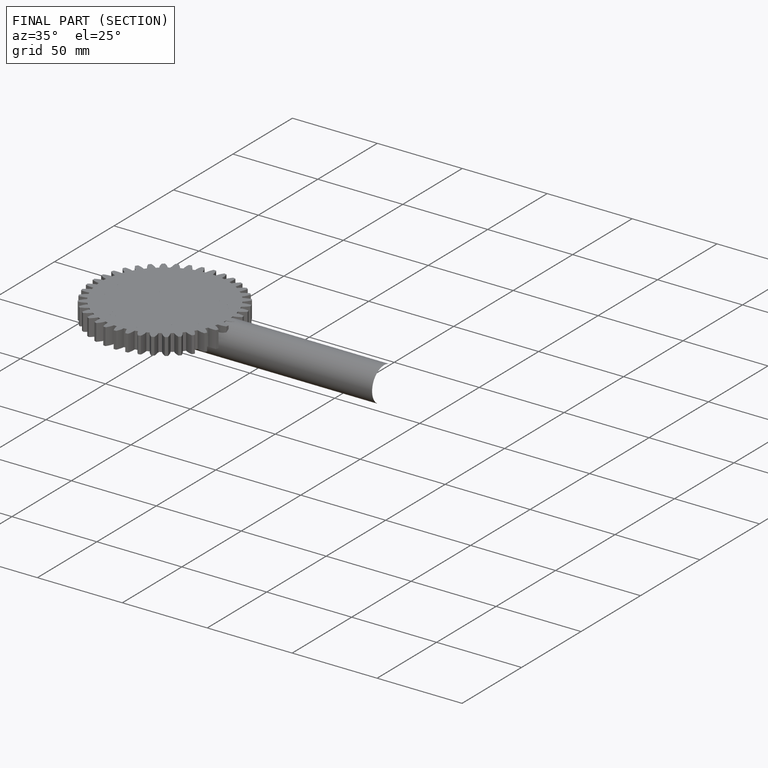
[diagram: finished part — half-section view (interior)]
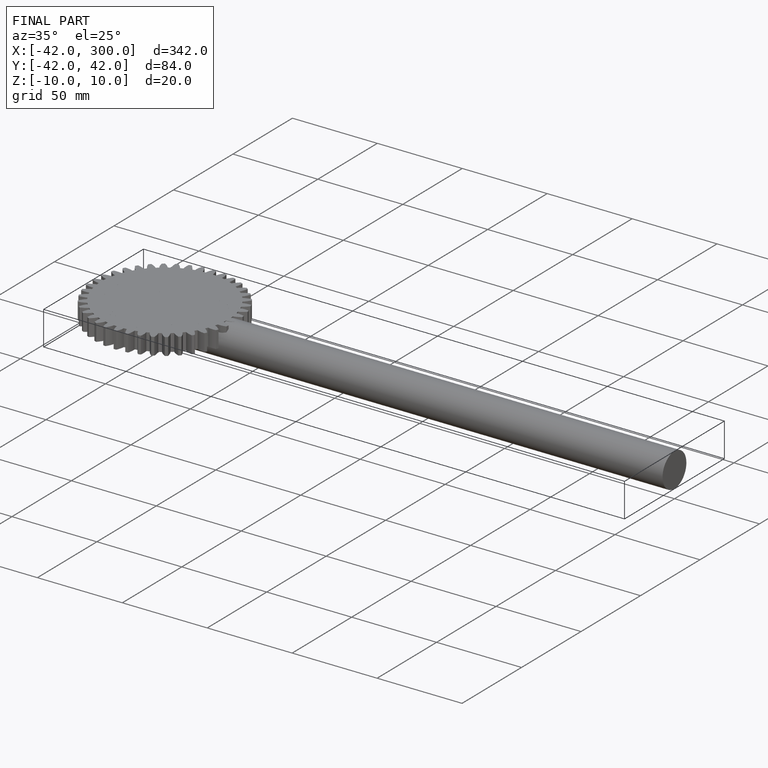
[diagram: finished part — iso view with bounding-box wireframe]
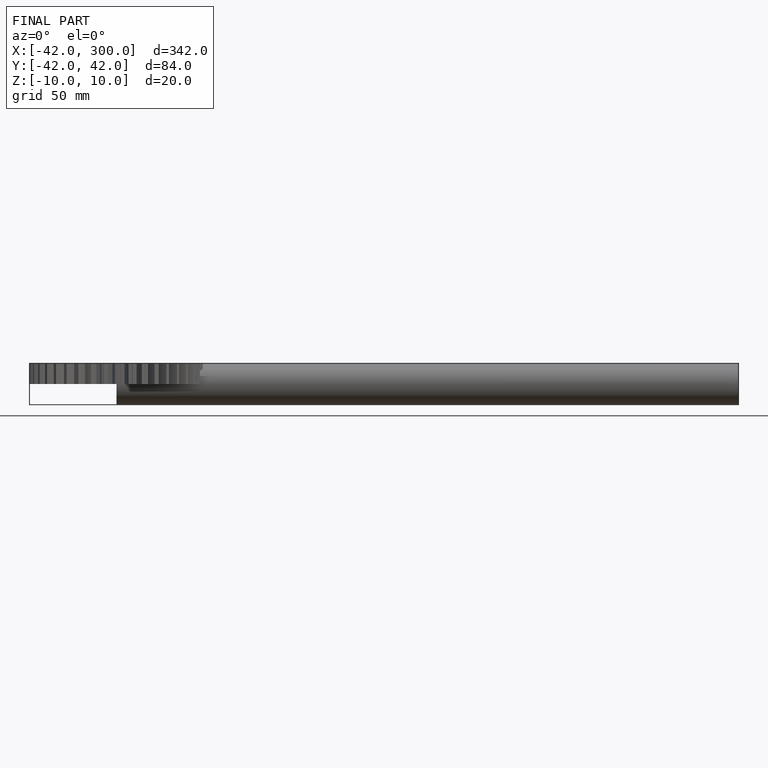
[diagram: finished part — front view with bounding-box wireframe]
